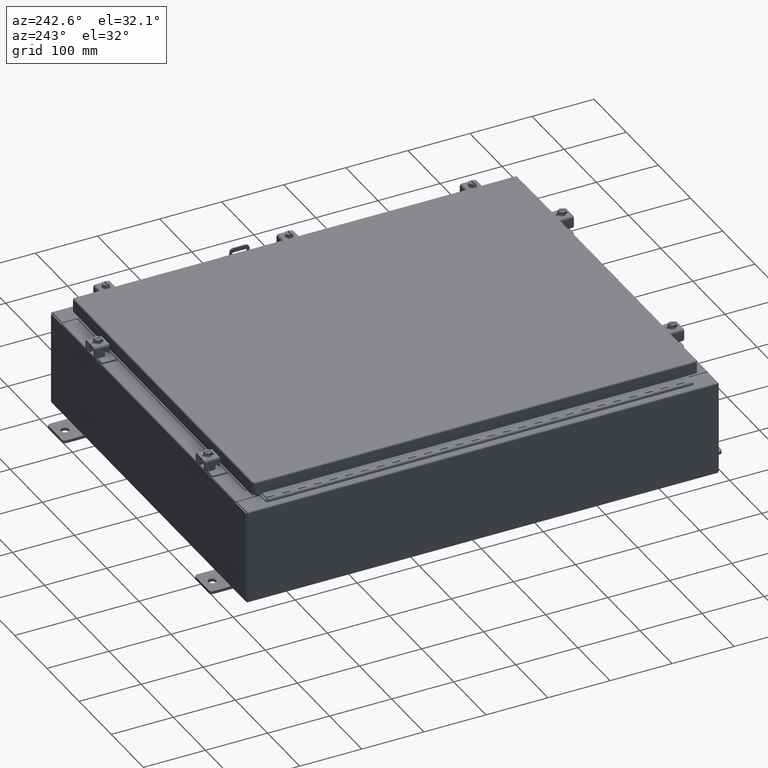
[diagram: clean part render]
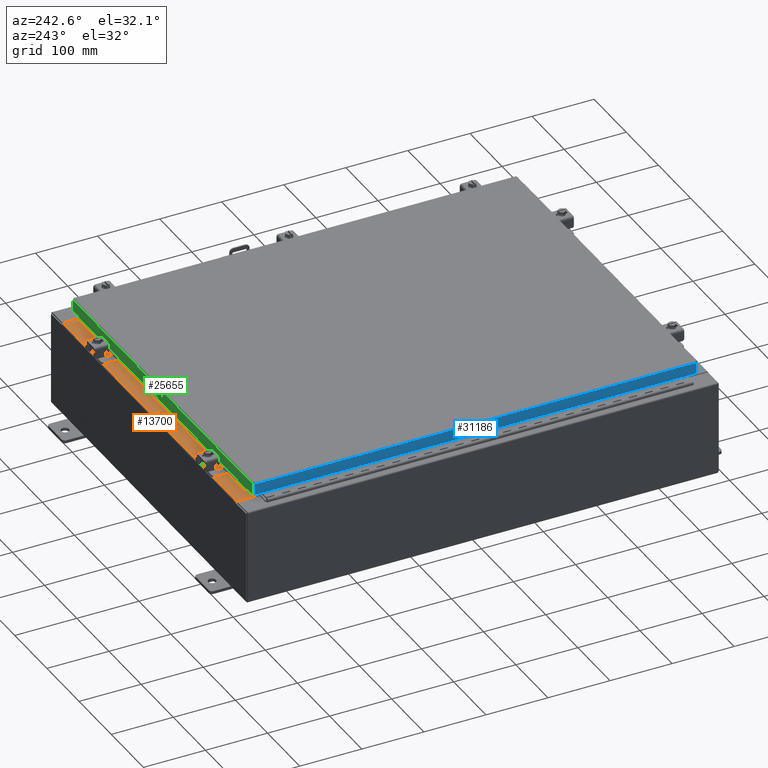
[diagram: same view with three faces highlighted in distinct colors, each labeled with its STEP entity id]
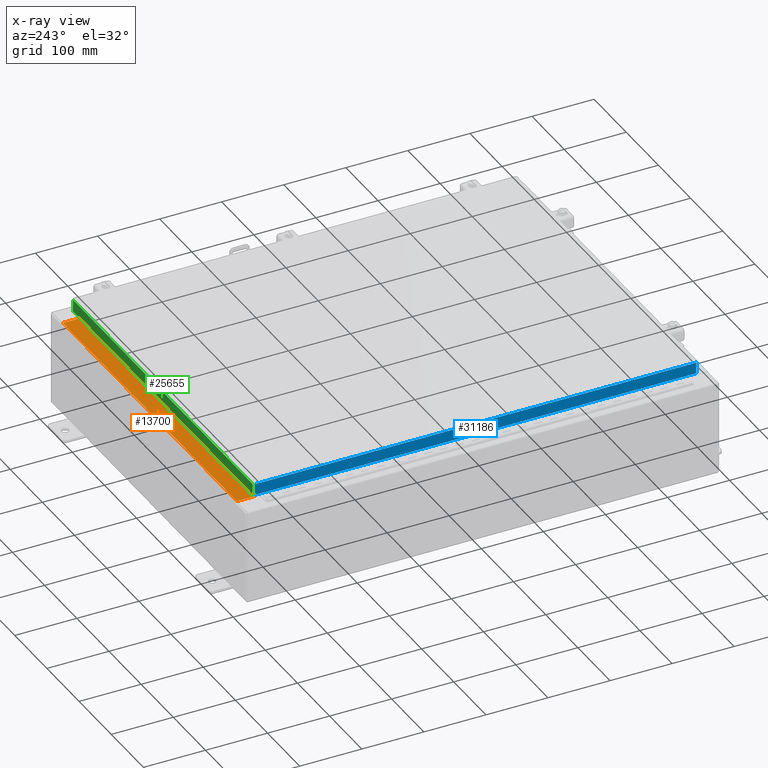
[diagram: x-ray of the same camera — body ghosted, the three highlighted faces saturated]
A machine part, auxiliary view with three faces highlighted in distinct colors.
The next image is the same camera in x-ray (body ghosted, the three faces saturated) — at least one of them is partly hidden behind the body in this view.
Their STEP definitions:

[orange] entity #13700 — the highlighted planar face has unit normal (0, 0, 1).
#14 = LINE ( 'NONE', #8517, #29897 ) ;
#539 = CARTESIAN_POINT ( 'NONE',  ( -10.63720000000000200, -0.07469999999999973900, 3.000000000000000900 ) ) ;
#1416 = AXIS2_PLACEMENT_3D ( 'NONE', #27457, #18849, #1538 ) ;
#1420 = PLANE ( 'NONE',  #1416 ) ;
#1538 = DIRECTION ( 'NONE',  ( 0.0000000000000000000, -1.000000000000000000, 3.566381192773190000E-015 ) ) ;
#3491 = EDGE_CURVE ( 'NONE', #28374, #30333, #29614, .T. ) ;
#3882 = VERTEX_POINT ( 'NONE', #36321 ) ;
#5128 = CARTESIAN_POINT ( 'NONE',  ( -2.252313287748515100E-018, -0.08770000000000000000, 3.000000000000001300 ) ) ;
#5348 = VECTOR ( 'NONE', #16602, 39.37007874015748100 ) ;
#6267 = LINE ( 'NONE', #5128, #5348 ) ;
#6569 = LINE ( 'NONE', #539, #13337 ) ;
#8517 = CARTESIAN_POINT ( 'NONE',  ( 10.63720000000000200, -1.300299999999999800, 3.000000000000005300 ) ) ;
#11383 = ORIENTED_EDGE ( 'NONE', *, *, #17027, .T. ) ;
#11422 = DIRECTION ( 'NONE',  ( -0.0000000000000000000, -1.000000000000000000, 3.566381192773190000E-015 ) ) ;
#12469 = ORIENTED_EDGE ( 'NONE', *, *, #22338, .F. ) ;
#13337 = VECTOR ( 'NONE', #32270, 39.37007874015748100 ) ;
#13700 = ADVANCED_FACE ( 'NONE', ( #31103 ), #1420, .T. ) ;
#14276 = VECTOR ( 'NONE', #15344, 39.37007874015748100 ) ;
#15344 = DIRECTION ( 'NONE',  ( -1.000000000000000000, 0.0000000000000000000, 0.0000000000000000000 ) ) ;
#16602 = DIRECTION ( 'NONE',  ( -1.000000000000000000, 2.568202152506545800E-017, -9.159187855938968600E-032 ) ) ;
#17027 = EDGE_CURVE ( 'NONE', #25080, #3882, #6267, .T. ) ;
#17281 = CARTESIAN_POINT ( 'NONE',  ( 10.63720000000000400, -0.08769999999999965300, 3.000000000000000900 ) ) ;
#18849 = DIRECTION ( 'NONE',  ( 0.0000000000000000000, 3.566381192773190000E-015, 1.000000000000000000 ) ) ;
#22338 = EDGE_CURVE ( 'NONE', #25080, #28374, #14, .T. ) ;
#23340 = ORIENTED_EDGE ( 'NONE', *, *, #31294, .F. ) ;
#24014 = CARTESIAN_POINT ( 'NONE',  ( 10.63720000000000200, -1.287299999999999900, 3.000000000000005300 ) ) ;
#25080 = VERTEX_POINT ( 'NONE', #17281 ) ;
#27096 = CARTESIAN_POINT ( 'NONE',  ( 10.63720000000000400, -1.287299999999999900, 3.000000000000005300 ) ) ;
#27268 = EDGE_LOOP ( 'NONE', ( #23340, #27638, #12469, #11383 ) ) ;
#27457 = CARTESIAN_POINT ( 'NONE',  ( 0.0000000000000000000, 1.069354855923099900E-014, 3.000000000000000900 ) ) ;
#27638 = ORIENTED_EDGE ( 'NONE', *, *, #3491, .F. ) ;
#28374 = VERTEX_POINT ( 'NONE', #24014 ) ;
#29614 = LINE ( 'NONE', #27096, #14276 ) ;
#29897 = VECTOR ( 'NONE', #11422, 39.37007874015748100 ) ;
#30333 = VERTEX_POINT ( 'NONE', #32989 ) ;
#31103 = FACE_OUTER_BOUND ( 'NONE', #27268, .T. ) ;
#31294 = EDGE_CURVE ( 'NONE', #30333, #3882, #6569, .T. ) ;
#32270 = DIRECTION ( 'NONE',  ( -0.0000000000000000000, 1.000000000000000000, -3.566381192773190000E-015 ) ) ;
#32989 = CARTESIAN_POINT ( 'NONE',  ( -10.63720000000000200, -1.287299999999999200, 3.000000000000005300 ) ) ;
#36321 = CARTESIAN_POINT ( 'NONE',  ( -10.63720000000000200, -0.08770000000000000000, 3.000000000000000900 ) ) ;

[blue] entity #31186 — the highlighted planar face has unit normal (1, 0, -0).
#783 = DIRECTION ( 'NONE',  ( -3.034122441942816500E-015, 6.982962677686265900E-015, -1.000000000000000000 ) ) ;
#912 = CARTESIAN_POINT ( 'NONE',  ( -11.07799999999999900, 14.00515786437626900, 1.316703167298978800E-013 ) ) ;
#3994 = LINE ( 'NONE', #912, #33812 ) ;
#5838 = CARTESIAN_POINT ( 'NONE',  ( -11.07800000000000300, 14.00515786437627400, -0.7949999999999962700 ) ) ;
#5906 = DIRECTION ( 'NONE',  ( -3.034122441942816500E-015, 0.0000000000000000000, -1.000000000000000000 ) ) ;
#8060 = DIRECTION ( 'NONE',  ( -4.379057701015054300E-047, 1.000000000000000000, 1.211441035930299800E-016 ) ) ;
#8943 = DIRECTION ( 'NONE',  ( -3.034122441942816500E-015, 6.982962677686265900E-015, -1.000000000000000000 ) ) ;
#10374 = VERTEX_POINT ( 'NONE', #21456 ) ;
#14397 = VERTEX_POINT ( 'NONE', #16399 ) ;
#14844 = EDGE_LOOP ( 'NONE', ( #37062, #26438, #18682, #35951 ) ) ;
#15417 = VECTOR ( 'NONE', #8060, 39.37007874015748100 ) ;
#16399 = CARTESIAN_POINT ( 'NONE',  ( -11.07799999999999900, 14.00515786437626900, -0.08770000000000004200 ) ) ;
#16750 = DIRECTION ( 'NONE',  ( 3.675660434206577100E-031, -1.000000000000000000, -1.083515668565077200E-045 ) ) ;
#17366 = PLANE ( 'NONE',  #26185 ) ;
#18682 = ORIENTED_EDGE ( 'NONE', *, *, #33444, .F. ) ;
#20392 = LINE ( 'NONE', #23330, #34915 ) ;
#20571 = EDGE_CURVE ( 'NONE', #14397, #26151, #37157, .T. ) ;
#21456 = CARTESIAN_POINT ( 'NONE',  ( -11.07800000000000300, -14.00515786437626200, -0.7949999999999996000 ) ) ;
#23085 = LINE ( 'NONE', #36840, #15417 ) ;
#23171 = DIRECTION ( 'NONE',  ( 1.000000000000000000, 3.675660434206576600E-031, -3.034122441942816500E-015 ) ) ;
#23330 = CARTESIAN_POINT ( 'NONE',  ( -11.07799999999999900, -14.00515786437626500, -0.07469999999999976700 ) ) ;
#26151 = VERTEX_POINT ( 'NONE', #34558 ) ;
#26185 = AXIS2_PLACEMENT_3D ( 'NONE', #37471, #23171, #5906 ) ;
#26438 = ORIENTED_EDGE ( 'NONE', *, *, #37308, .T. ) ;
#26838 = VERTEX_POINT ( 'NONE', #5838 ) ;
#31186 = ADVANCED_FACE ( 'NONE', ( #31379 ), #17366, .F. ) ;
#31379 = FACE_OUTER_BOUND ( 'NONE', #14844, .T. ) ;
#32996 = EDGE_CURVE ( 'NONE', #26151, #10374, #20392, .T. ) ;
#33444 = EDGE_CURVE ( 'NONE', #10374, #26838, #23085, .T. ) ;
#33812 = VECTOR ( 'NONE', #783, 39.37007874015748100 ) ;
#34075 = CARTESIAN_POINT ( 'NONE',  ( -11.07799999999999900, -14.09399999999999600, -0.08770000000000004200 ) ) ;
#34558 = CARTESIAN_POINT ( 'NONE',  ( -11.07799999999999900, -14.00515786437626400, -0.08770000000000007000 ) ) ;
#34915 = VECTOR ( 'NONE', #8943, 39.37007874015748100 ) ;
#35951 = ORIENTED_EDGE ( 'NONE', *, *, #32996, .F. ) ;
#36268 = VECTOR ( 'NONE', #16750, 39.37007874015748100 ) ;
#36840 = CARTESIAN_POINT ( 'NONE',  ( -11.07800000000000300, -14.09399999999999600, -0.7949999999999997100 ) ) ;
#37062 = ORIENTED_EDGE ( 'NONE', *, *, #20571, .F. ) ;
#37157 = LINE ( 'NONE', #34075, #36268 ) ;
#37308 = EDGE_CURVE ( 'NONE', #14397, #26838, #3994, .T. ) ;
#37471 = CARTESIAN_POINT ( 'NONE',  ( -11.07799999999999900, -4.071896629014046000E-030, 3.387282206785410600E-014 ) ) ;

[green] entity #25655 — the highlighted planar face has unit normal (0, -1, -0).
#262 = VERTEX_POINT ( 'NONE', #13918 ) ;
#1931 = VECTOR ( 'NONE', #32617, 39.37007874015748100 ) ;
#2388 = EDGE_CURVE ( 'NONE', #16257, #17937, #35163, .T. ) ;
#2977 = ORIENTED_EDGE ( 'NONE', *, *, #37198, .F. ) ;
#3215 = CARTESIAN_POINT ( 'NONE',  ( -11.07799999999999900, 14.09399999999999900, -0.08770000000000007000 ) ) ;
#5501 = EDGE_CURVE ( 'NONE', #26578, #262, #13241, .T. ) ;
#6387 = CARTESIAN_POINT ( 'NONE',  ( 10.98915786437626700, 14.09399999999999900, -0.08770000000000007000 ) ) ;
#6422 = ORIENTED_EDGE ( 'NONE', *, *, #2388, .F. ) ;
#7619 = LINE ( 'NONE', #3215, #22934 ) ;
#7654 = CARTESIAN_POINT ( 'NONE',  ( -10.23915786437627100, 14.09399999999999900, -0.8500000000000033100 ) ) ;
#9655 = EDGE_CURVE ( 'NONE', #28303, #17937, #31841, .T. ) ;
#11096 = EDGE_CURVE ( 'NONE', #262, #19356, #30842, .T. ) ;
#11198 = VECTOR ( 'NONE', #29466, 39.37007874015748100 ) ;
#11534 = ORIENTED_EDGE ( 'NONE', *, *, #9655, .T. ) ;
#11933 = DIRECTION ( 'NONE',  ( -1.000000000000000000, -3.475696988576942200E-031, -9.473942235605600700E-046 ) ) ;
#12169 = EDGE_CURVE ( 'NONE', #19356, #16257, #19463, .T. ) ;
#12424 = CARTESIAN_POINT ( 'NONE',  ( -11.07799999999999900, 14.09400000000000100, -0.8500000000000024200 ) ) ;
#13241 = LINE ( 'NONE', #27123, #27675 ) ;
#13918 = CARTESIAN_POINT ( 'NONE',  ( -10.98915786437626900, 14.09400000000000100, -0.8500000000000024200 ) ) ;
#14001 = ORIENTED_EDGE ( 'NONE', *, *, #12169, .F. ) ;
#16257 = VERTEX_POINT ( 'NONE', #36155 ) ;
#16841 = DIRECTION ( 'NONE',  ( -0.0000000000000000000, 2.818880942772350300E-015, -1.000000000000000000 ) ) ;
#17937 = VERTEX_POINT ( 'NONE', #27281 ) ;
#18882 = DIRECTION ( 'NONE',  ( 1.000000000000000000, -0.0000000000000000000, -0.0000000000000000000 ) ) ;
#18931 = ORIENTED_EDGE ( 'NONE', *, *, #5501, .F. ) ;
#19356 = VERTEX_POINT ( 'NONE', #7654 ) ;
#19463 = LINE ( 'NONE', #33421, #33959 ) ;
#20472 = CARTESIAN_POINT ( 'NONE',  ( 10.98915786437626900, 14.09399999999999900, 3.999012166344507700E-014 ) ) ;
#20660 = CARTESIAN_POINT ( 'NONE',  ( -4.898647335700341400E-030, 14.09399999999999900, 3.999012166344507700E-014 ) ) ;
#22934 = VECTOR ( 'NONE', #11933, 39.37007874015748100 ) ;
#23558 = PLANE ( 'NONE',  #32726 ) ;
#24176 = VECTOR ( 'NONE', #32110, 39.37007874015748100 ) ;
#25655 = ADVANCED_FACE ( 'NONE', ( #27405 ), #23558, .F. ) ;
#26479 = DIRECTION ( 'NONE',  ( 0.0000000000000000000, 2.818880942772350300E-015, -1.000000000000000000 ) ) ;
#26578 = VERTEX_POINT ( 'NONE', #27689 ) ;
#27105 = ORIENTED_EDGE ( 'NONE', *, *, #11096, .F. ) ;
#27123 = CARTESIAN_POINT ( 'NONE',  ( -10.98915786437626900, 14.09399999999999900, -0.07469999999999978000 ) ) ;
#27281 = CARTESIAN_POINT ( 'NONE',  ( 10.98915786437626700, 14.09400000000000100, -0.8499999999999996400 ) ) ;
#27405 = FACE_OUTER_BOUND ( 'NONE', #27894, .T. ) ;
#27675 = VECTOR ( 'NONE', #16841, 39.37007874015748100 ) ;
#27689 = CARTESIAN_POINT ( 'NONE',  ( -10.98915786437626700, 14.09399999999999900, -0.08770000000000007000 ) ) ;
#27894 = EDGE_LOOP ( 'NONE', ( #2977, #11534, #6422, #14001, #27105, #18931 ) ) ;
#28303 = VERTEX_POINT ( 'NONE', #6387 ) ;
#29120 = DIRECTION ( 'NONE',  ( 3.475696988576941300E-031, -1.000000000000000000, -2.818880942772350300E-015 ) ) ;
#29417 = CARTESIAN_POINT ( 'NONE',  ( -11.07799999999999900, 14.09400000000000100, -0.8500000000000024200 ) ) ;
#29466 = DIRECTION ( 'NONE',  ( 1.000000000000000000, -4.379057701015054300E-047, 1.233005954894504400E-016 ) ) ;
#30842 = LINE ( 'NONE', #12424, #1931 ) ;
#31841 = LINE ( 'NONE', #20472, #24176 ) ;
#32110 = DIRECTION ( 'NONE',  ( 0.0000000000000000000, 2.818880942772350300E-015, -1.000000000000000000 ) ) ;
#32617 = DIRECTION ( 'NONE',  ( 1.000000000000000000, -4.379057701015054300E-047, 1.233005954894504400E-016 ) ) ;
#32726 = AXIS2_PLACEMENT_3D ( 'NONE', #20660, #29120, #26479 ) ;
#33421 = CARTESIAN_POINT ( 'NONE',  ( -10.23915786437627100, 14.09399999999999900, -0.8500000000000033100 ) ) ;
#33959 = VECTOR ( 'NONE', #18882, 39.37007874015748100 ) ;
#35163 = LINE ( 'NONE', #29417, #11198 ) ;
#36155 = CARTESIAN_POINT ( 'NONE',  ( 10.23915786437626700, 14.09399999999999900, -0.8500000000000033100 ) ) ;
#37198 = EDGE_CURVE ( 'NONE', #28303, #26578, #7619, .T. ) ;